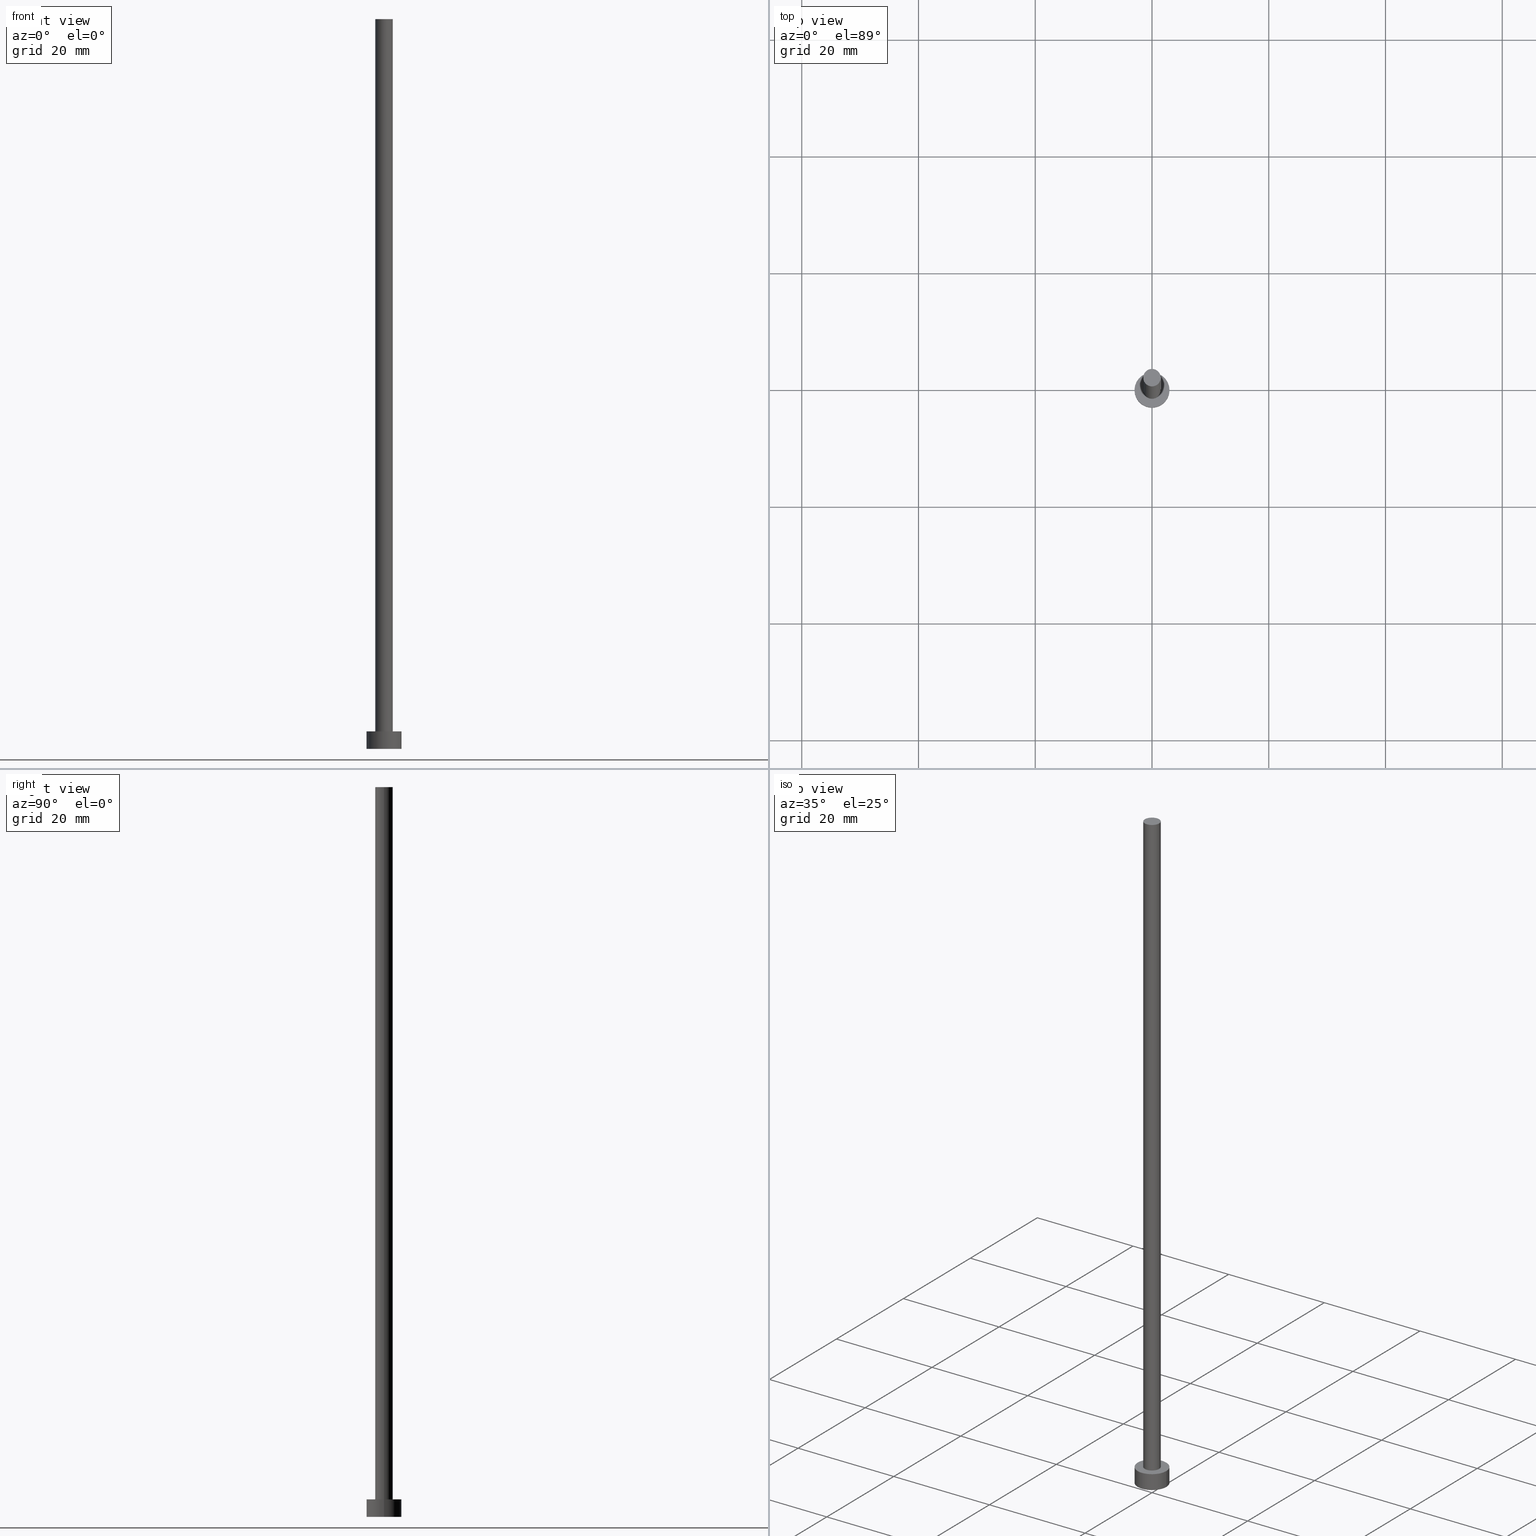
[diagram: canonical four-view strip — front | top / right | iso, engineering-drawing reading convention]
A machine part, canonical four-view strip (front | top / right | iso — engineering-drawing reading convention). The complete STEP part file that produces these views, byte-faithful:
ISO-10303-21;
HEADER;
FILE_DESCRIPTION (( 'STEP AP203' ),
    '1' );
FILE_NAME ('4099.STEP',
    '2023-02-12T12:13:59',
    ( '' ),
    ( '' ),
    'SwSTEP 2.0',
    'SolidWorks 2019',
    '' );
FILE_SCHEMA (( 'CONFIG_CONTROL_DESIGN' ));
ENDSEC;

DATA;
#1 = LINE ( 'NONE', #57, #152 ) ;
#2 = CARTESIAN_POINT ( 'NONE',  ( 0.000000000000000000, 0.000000000000000000, 3.000000000000000000 ) ) ;
#3 = DIRECTION ( 'NONE',  ( 0.000000000000000000, 0.000000000000000000, 1.000000000000000000 ) ) ;
#4 = CC_DESIGN_PERSON_AND_ORGANIZATION_ASSIGNMENT ( #91, #30, ( #9 ) ) ;
#5 = EDGE_LOOP ( 'NONE', ( #8, #36 ) ) ;
#6 = EDGE_CURVE ( 'NONE', #211, #42, #1, .T. ) ;
#7 = AXIS2_PLACEMENT_3D ( 'NONE', #2, #198, #220 ) ;
#8 = ORIENTED_EDGE ( 'NONE', *, *, #202, .T. ) ;
#9 = PRODUCT_DEFINITION_FORMATION_WITH_SPECIFIED_SOURCE ( 'LIBOVOLN�', '', #125, .NOT_KNOWN. ) ;
#10 = DATE_TIME_ROLE ( 'creation_date' ) ;
#11 = PERSON_AND_ORGANIZATION_ROLE ( 'design_supplier' ) ;
#12 = ADVANCED_BREP_SHAPE_REPRESENTATION ( '4099', ( #163, #234 ), #186 ) ;
#13 = MECHANICAL_CONTEXT ( 'NONE', #241, 'mechanical' ) ;
#14 = PRODUCT_RELATED_PRODUCT_CATEGORY ( 'detail', '', ( #125 ) ) ;
#15 = CARTESIAN_POINT ( 'NONE',  ( -3.000000000000000444, 0.000000000000000000, 3.000000000000000000 ) ) ;
#16 = CARTESIAN_POINT ( 'NONE',  ( 1.500000000000000222, 1.836970198721029934E-16, 125.0000000000000000 ) ) ;
#17 = CIRCLE ( 'NONE', #45, 3.000000000000000444 ) ;
#18 = CIRCLE ( 'NONE', #104, 3.000000000000000444 ) ;
#19 = DIRECTION ( 'NONE',  ( -1.000000000000000000, 0.000000000000000000, 0.000000000000000000 ) ) ;
#20 = PLANE ( 'NONE',  #24 ) ;
#21 = CARTESIAN_POINT ( 'NONE',  ( -1.500000000000000222, 0.000000000000000000, 3.000000000000000000 ) ) ;
#22 = DIRECTION ( 'NONE',  ( 0.000000000000000000, 0.000000000000000000, 1.000000000000000000 ) ) ;
#23 = CARTESIAN_POINT ( 'NONE',  ( 0.000000000000000000, 0.000000000000000000, 125.0000000000000000 ) ) ;
#24 = AXIS2_PLACEMENT_3D ( 'NONE', #98, #178, #37 ) ;
#25 = CC_DESIGN_PERSON_AND_ORGANIZATION_ASSIGNMENT ( #203, #226, ( #86 ) ) ;
#26 = LOCAL_TIME ( 13, 13, 59.00000000000000000, #228 ) ;
#27 = ORIENTED_EDGE ( 'NONE', *, *, #127, .F. ) ;
#28 = ADVANCED_FACE ( 'NONE', ( #196 ), #235, .T. ) ;
#29 = COORDINATED_UNIVERSAL_TIME_OFFSET ( 1, 0, .AHEAD. ) ;
#30 = PERSON_AND_ORGANIZATION_ROLE ( 'creator' ) ;
#31 = APPROVAL_ROLE ( '' ) ;
#32 = VERTEX_POINT ( 'NONE', #189 ) ;
#33 = EDGE_CURVE ( 'NONE', #179, #211, #102, .T. ) ;
#34 = CARTESIAN_POINT ( 'NONE',  ( 3.000000000000000444, 3.673940397442060361E-16, 0.000000000000000000 ) ) ;
#35 = CYLINDRICAL_SURFACE ( 'NONE', #153, 3.000000000000000444 ) ;
#36 = ORIENTED_EDGE ( 'NONE', *, *, #33, .T. ) ;
#37 = DIRECTION ( 'NONE',  ( 1.000000000000000000, 0.000000000000000000, -0.000000000000000000 ) ) ;
#38 = LINE ( 'NONE', #15, #240 ) ;
#39 = CARTESIAN_POINT ( 'NONE',  ( 0.000000000000000000, 0.000000000000000000, 125.0000000000000000 ) ) ;
#40 = DIRECTION ( 'NONE',  ( 1.000000000000000000, 0.000000000000000000, -0.000000000000000000 ) ) ;
#41 = ORIENTED_EDGE ( 'NONE', *, *, #51, .T. ) ;
#42 = VERTEX_POINT ( 'NONE', #21 ) ;
#43 = DATE_AND_TIME ( #132, #147 ) ;
#44 = APPROVAL ( #130, 'NEUR�EN�' ) ;
#45 = AXIS2_PLACEMENT_3D ( 'NONE', #174, #251, #73 ) ;
#46 = PERSON_AND_ORGANIZATION ( #131, #59 ) ;
#47 = CALENDAR_DATE ( 2023, 12, 2 ) ;
#48 = APPROVAL_STATUS ( 'not_yet_approved' ) ;
#49 = PERSON_AND_ORGANIZATION ( #131, #59 ) ;
#50 = ORIENTED_EDGE ( 'NONE', *, *, #143, .T. ) ;
#51 = EDGE_CURVE ( 'NONE', #179, #32, #116, .T. ) ;
#52 = CARTESIAN_POINT ( 'NONE',  ( 0.000000000000000000, 0.000000000000000000, 3.000000000000000000 ) ) ;
#53 = CARTESIAN_POINT ( 'NONE',  ( 3.000000000000000444, 3.673940397442060361E-16, 3.000000000000000000 ) ) ;
#54 = DIRECTION ( 'NONE',  ( -1.000000000000000000, 0.000000000000000000, 0.000000000000000000 ) ) ;
#55 = VERTEX_POINT ( 'NONE', #34 ) ;
#56 =( NAMED_UNIT ( * ) SI_UNIT ( $, .STERADIAN. ) SOLID_ANGLE_UNIT ( ) );
#57 = CARTESIAN_POINT ( 'NONE',  ( -1.500000000000000222, 0.000000000000000000, 125.0000000000000000 ) ) ;
#58 = DIRECTION ( 'NONE',  ( 0.000000000000000000, 0.000000000000000000, 1.000000000000000000 ) ) ;
#59 = ORGANIZATION ( 'NEUR�EN�', 'NEUR�EN�', '' ) ;
#60 = APPROVAL ( #67, 'NEUR�EN�' ) ;
#61 = EDGE_CURVE ( 'NONE', #118, #55, #135, .T. ) ;
#62 = VECTOR ( 'NONE', #138, 1000.000000000000000 ) ;
#63 = LOCAL_TIME ( 13, 13, 59.00000000000000000, #29 ) ;
#64 = EDGE_LOOP ( 'NONE', ( #123, #41, #166, #65 ) ) ;
#65 = ORIENTED_EDGE ( 'NONE', *, *, #6, .F. ) ;
#66 = APPROVAL_DATE_TIME ( #43, #44 ) ;
#67 = APPROVAL_STATUS ( 'not_yet_approved' ) ;
#68 = PERSON_AND_ORGANIZATION ( #131, #59 ) ;
#69 = ADVANCED_FACE ( 'NONE', ( #247 ), #71, .T. ) ;
#70 = APPROVAL_DATE_TIME ( #246, #94 ) ;
#71 = CYLINDRICAL_SURFACE ( 'NONE', #129, 3.000000000000000444 ) ;
#72 = CARTESIAN_POINT ( 'NONE',  ( 0.000000000000000000, 0.000000000000000000, 125.0000000000000000 ) ) ;
#73 = DIRECTION ( 'NONE',  ( 1.000000000000000000, 0.000000000000000000, 0.000000000000000000 ) ) ;
#74 = DIRECTION ( 'NONE',  ( 1.000000000000000000, 0.000000000000000000, 0.000000000000000000 ) ) ;
#75 = CC_DESIGN_APPROVAL ( #94, ( #86 ) ) ;
#76 = DIRECTION ( 'NONE',  ( 1.000000000000000000, 0.000000000000000000, 0.000000000000000000 ) ) ;
#77 = CARTESIAN_POINT ( 'NONE',  ( 0.000000000000000000, 0.000000000000000000, 3.000000000000000000 ) ) ;
#78 = EDGE_CURVE ( 'NONE', #182, #224, #38, .T. ) ;
#79 = CARTESIAN_POINT ( 'NONE',  ( 3.000000000000000444, 3.673940397442060361E-16, 3.000000000000000000 ) ) ;
#80 = DIRECTION ( 'NONE',  ( 1.000000000000000000, 0.000000000000000000, -0.000000000000000000 ) ) ;
#81 = DIRECTION ( 'NONE',  ( 1.000000000000000000, 0.000000000000000000, 0.000000000000000000 ) ) ;
#82 = EDGE_CURVE ( 'NONE', #224, #55, #17, .T. ) ;
#83 = EDGE_CURVE ( 'NONE', #55, #224, #192, .T. ) ;
#84 = ORIENTED_EDGE ( 'NONE', *, *, #167, .F. ) ;
#85 = PRODUCT_DEFINITION_SHAPE ( 'NONE', 'NONE',  #86 ) ;
#86 = PRODUCT_DEFINITION ( 'NEZN�M�', '', #9, #253 ) ;
#87 = CIRCLE ( 'NONE', #193, 3.000000000000000444 ) ;
#88 = APPROVAL_ROLE ( '' ) ;
#89 = ORIENTED_EDGE ( 'NONE', *, *, #127, .T. ) ;
#90 = DATE_AND_TIME ( #184, #109 ) ;
#91 = PERSON_AND_ORGANIZATION ( #131, #59 ) ;
#92 = APPROVAL_ROLE ( '' ) ;
#93 = DIRECTION ( 'NONE',  ( -0.000000000000000000, -0.000000000000000000, -1.000000000000000000 ) ) ;
#94 = APPROVAL ( #48, 'NEUR�EN�' ) ;
#95 = DIRECTION ( 'NONE',  ( -0.000000000000000000, -0.000000000000000000, -1.000000000000000000 ) ) ;
#96 = CARTESIAN_POINT ( 'NONE',  ( 0.000000000000000000, 0.000000000000000000, 0.000000000000000000 ) ) ;
#97 = CARTESIAN_POINT ( 'NONE',  ( 0.000000000000000000, 0.000000000000000000, 0.000000000000000000 ) ) ;
#98 = CARTESIAN_POINT ( 'NONE',  ( 0.000000000000000000, 0.000000000000000000, 125.0000000000000000 ) ) ;
#99 = APPROVAL_PERSON_ORGANIZATION ( #49, #60, #31 ) ;
#100 = PLANE ( 'NONE',  #210 ) ;
#101 = DIRECTION ( 'NONE',  ( 0.000000000000000000, 0.000000000000000000, 1.000000000000000000 ) ) ;
#102 = CIRCLE ( 'NONE', #162, 1.500000000000000222 ) ;
#103 = DIRECTION ( 'NONE',  ( -1.000000000000000000, 0.000000000000000000, 0.000000000000000000 ) ) ;
#104 = AXIS2_PLACEMENT_3D ( 'NONE', #159, #3, #119 ) ;
#105 = ORIENTED_EDGE ( 'NONE', *, *, #78, .T. ) ;
#106 = ADVANCED_FACE ( 'NONE', ( #157, #140 ), #100, .T. ) ;
#107 = PERSON_AND_ORGANIZATION ( #131, #59 ) ;
#108 = COORDINATED_UNIVERSAL_TIME_OFFSET ( 1, 0, .AHEAD. ) ;
#109 = LOCAL_TIME ( 13, 13, 59.00000000000000000, #108 ) ;
#110 = APPROVAL_DATE_TIME ( #133, #60 ) ;
#111 = CARTESIAN_POINT ( 'NONE',  ( 0.000000000000000000, 0.000000000000000000, 125.0000000000000000 ) ) ;
#112 = CC_DESIGN_PERSON_AND_ORGANIZATION_ASSIGNMENT ( #245, #207, ( #222 ) ) ;
#113 = APPLICATION_CONTEXT ( 'configuration controlled 3d designs of mechanical parts and assemblies' ) ;
#114 = DIRECTION ( 'NONE',  ( -0.000000000000000000, -0.000000000000000000, -1.000000000000000000 ) ) ;
#115 = CARTESIAN_POINT ( 'NONE',  ( -3.000000000000000444, 0.000000000000000000, 3.000000000000000000 ) ) ;
#116 = LINE ( 'NONE', #194, #249 ) ;
#117 = FACE_OUTER_BOUND ( 'NONE', #124, .T. ) ;
#118 = VERTEX_POINT ( 'NONE', #53 ) ;
#119 = DIRECTION ( 'NONE',  ( 1.000000000000000000, 0.000000000000000000, 0.000000000000000000 ) ) ;
#120 = CARTESIAN_POINT ( 'NONE',  ( 0.000000000000000000, 0.000000000000000000, 3.000000000000000000 ) ) ;
#121 = CC_DESIGN_DATE_AND_TIME_ASSIGNMENT ( #90, #208, ( #222 ) ) ;
#122 = APPROVAL_PERSON_ORGANIZATION ( #68, #94, #88 ) ;
#123 = ORIENTED_EDGE ( 'NONE', *, *, #33, .F. ) ;
#124 = EDGE_LOOP ( 'NONE', ( #201, #204, #105, #154 ) ) ;
#125 = PRODUCT ( '4099', '4099', '', ( #13 ) ) ;
#126 = ORIENTED_EDGE ( 'NONE', *, *, #82, .F. ) ;
#127 = EDGE_CURVE ( 'NONE', #118, #182, #18, .T. ) ;
#128 = CALENDAR_DATE ( 2023, 12, 2 ) ;
#129 = AXIS2_PLACEMENT_3D ( 'NONE', #52, #114, #19 ) ;
#130 = APPROVAL_STATUS ( 'not_yet_approved' ) ;
#131 = PERSON ( 'NEUR�EN�', 'NEUR�EN�', 'NEUR�EN�', ('NEUR�EN�'), ('NEUR�EN�'), ('NEUR�EN�') ) ;
#132 = CALENDAR_DATE ( 2023, 12, 2 ) ;
#133 = DATE_AND_TIME ( #47, #26 ) ;
#134 = ADVANCED_FACE ( 'NONE', ( #216 ), #20, .T. ) ;
#135 = LINE ( 'NONE', #79, #62 ) ;
#136 = ORIENTED_EDGE ( 'NONE', *, *, #78, .F. ) ;
#137 = CARTESIAN_POINT ( 'NONE',  ( 0.000000000000000000, 0.000000000000000000, 3.000000000000000000 ) ) ;
#138 = DIRECTION ( 'NONE',  ( -0.000000000000000000, -0.000000000000000000, -1.000000000000000000 ) ) ;
#139 = CARTESIAN_POINT ( 'NONE',  ( -1.500000000000000222, 0.000000000000000000, 125.0000000000000000 ) ) ;
#140 = FACE_OUTER_BOUND ( 'NONE', #215, .T. ) ;
#141 = DIRECTION ( 'NONE',  ( -0.000000000000000000, -0.000000000000000000, -1.000000000000000000 ) ) ;
#142 = DIRECTION ( 'NONE',  ( 1.000000000000000000, 0.000000000000000000, 0.000000000000000000 ) ) ;
#143 = EDGE_CURVE ( 'NONE', #182, #118, #87, .T. ) ;
#144 = AXIS2_PLACEMENT_3D ( 'NONE', #23, #252, #103 ) ;
#145 = CC_DESIGN_SECURITY_CLASSIFICATION ( #222, ( #9 ) ) ;
#146 = ADVANCED_FACE ( 'NONE', ( #117 ), #35, .T. ) ;
#147 = LOCAL_TIME ( 13, 13, 59.00000000000000000, #151 ) ;
#148 = EDGE_LOOP ( 'NONE', ( #126, #218 ) ) ;
#149 = DIRECTION ( 'NONE',  ( 1.000000000000000000, 0.000000000000000000, 0.000000000000000000 ) ) ;
#150 = AXIS2_PLACEMENT_3D ( 'NONE', #96, #58, #40 ) ;
#151 = COORDINATED_UNIVERSAL_TIME_OFFSET ( 1, 0, .AHEAD. ) ;
#152 = VECTOR ( 'NONE', #141, 1000.000000000000000 ) ;
#153 = AXIS2_PLACEMENT_3D ( 'NONE', #255, #213, #180 ) ;
#154 = ORIENTED_EDGE ( 'NONE', *, *, #82, .T. ) ;
#155 =( LENGTH_UNIT ( ) NAMED_UNIT ( * ) SI_UNIT ( .MILLI., .METRE. ) );
#156 = EDGE_LOOP ( 'NONE', ( #27, #190, #212, #136 ) ) ;
#157 = FACE_BOUND ( 'NONE', #173, .T. ) ;
#158 = ORIENTED_EDGE ( 'NONE', *, *, #209, .F. ) ;
#159 = CARTESIAN_POINT ( 'NONE',  ( 0.000000000000000000, 0.000000000000000000, 3.000000000000000000 ) ) ;
#160 = CARTESIAN_POINT ( 'NONE',  ( -3.000000000000000444, 0.000000000000000000, 0.000000000000000000 ) ) ;
#161 = CC_DESIGN_PERSON_AND_ORGANIZATION_ASSIGNMENT ( #107, #230, ( #125 ) ) ;
#162 = AXIS2_PLACEMENT_3D ( 'NONE', #39, #254, #76 ) ;
#163 = MANIFOLD_SOLID_BREP ( 'P�idat vysunut�m3', #200 ) ;
#164 = CIRCLE ( 'NONE', #183, 1.500000000000000222 ) ;
#165 = EDGE_LOOP ( 'NONE', ( #232, #238, #225, #223 ) ) ;
#166 = ORIENTED_EDGE ( 'NONE', *, *, #209, .T. ) ;
#167 = EDGE_CURVE ( 'NONE', #42, #32, #250, .T. ) ;
#168 = CC_DESIGN_PERSON_AND_ORGANIZATION_ASSIGNMENT ( #231, #11, ( #9 ) ) ;
#169 = CALENDAR_DATE ( 2023, 12, 2 ) ;
#170 = COORDINATED_UNIVERSAL_TIME_OFFSET ( 1, 0, .AHEAD. ) ;
#171 = SECURITY_CLASSIFICATION_LEVEL ( 'unclassified' ) ;
#172 = CARTESIAN_POINT ( 'NONE',  ( 0.000000000000000000, 0.000000000000000000, 0.000000000000000000 ) ) ;
#173 = EDGE_LOOP ( 'NONE', ( #84, #158 ) ) ;
#174 = CARTESIAN_POINT ( 'NONE',  ( 0.000000000000000000, 0.000000000000000000, 0.000000000000000000 ) ) ;
#175 = CYLINDRICAL_SURFACE ( 'NONE', #144, 1.500000000000000222 ) ;
#176 = APPROVAL_PERSON_ORGANIZATION ( #46, #44, #92 ) ;
#177 = DIRECTION ( 'NONE',  ( 0.000000000000000000, 0.000000000000000000, 1.000000000000000000 ) ) ;
#178 = DIRECTION ( 'NONE',  ( 0.000000000000000000, 0.000000000000000000, 1.000000000000000000 ) ) ;
#179 = VERTEX_POINT ( 'NONE', #16 ) ;
#180 = DIRECTION ( 'NONE',  ( -1.000000000000000000, 0.000000000000000000, 0.000000000000000000 ) ) ;
#181 = DIRECTION ( 'NONE',  ( 0.000000000000000000, 0.000000000000000000, 1.000000000000000000 ) ) ;
#182 = VERTEX_POINT ( 'NONE', #115 ) ;
#183 = AXIS2_PLACEMENT_3D ( 'NONE', #77, #22, #81 ) ;
#184 = CALENDAR_DATE ( 2023, 12, 2 ) ;
#185 = APPLICATION_PROTOCOL_DEFINITION ( 'international standard', 'config_control_design', 1994, #241 ) ;
#186 =( GEOMETRIC_REPRESENTATION_CONTEXT ( 3 ) GLOBAL_UNCERTAINTY_ASSIGNED_CONTEXT ( ( #233 ) ) GLOBAL_UNIT_ASSIGNED_CONTEXT ( ( #155, #236, #56 ) ) REPRESENTATION_CONTEXT ( 'NONE', 'WORKASPACE' ) );
#187 = SHAPE_DEFINITION_REPRESENTATION ( #85, #12 ) ;
#188 = ADVANCED_FACE ( 'NONE', ( #195 ), #248, .F. ) ;
#189 = CARTESIAN_POINT ( 'NONE',  ( 1.500000000000000222, 1.836970198721029934E-16, 3.000000000000000000 ) ) ;
#190 = ORIENTED_EDGE ( 'NONE', *, *, #61, .T. ) ;
#191 = FACE_OUTER_BOUND ( 'NONE', #165, .T. ) ;
#192 = CIRCLE ( 'NONE', #227, 3.000000000000000444 ) ;
#193 = AXIS2_PLACEMENT_3D ( 'NONE', #137, #239, #142 ) ;
#194 = CARTESIAN_POINT ( 'NONE',  ( 1.500000000000000222, 1.836970198721029934E-16, 125.0000000000000000 ) ) ;
#195 = FACE_OUTER_BOUND ( 'NONE', #148, .T. ) ;
#196 = FACE_OUTER_BOUND ( 'NONE', #64, .T. ) ;
#197 = ADVANCED_FACE ( 'NONE', ( #191 ), #175, .T. ) ;
#198 = DIRECTION ( 'NONE',  ( 0.000000000000000000, 0.000000000000000000, 1.000000000000000000 ) ) ;
#199 = LOCAL_TIME ( 13, 13, 59.00000000000000000, #170 ) ;
#200 = CLOSED_SHELL ( 'NONE', ( #28, #69, #146, #106, #188, #197, #134 ) ) ;
#201 = ORIENTED_EDGE ( 'NONE', *, *, #61, .F. ) ;
#202 = EDGE_CURVE ( 'NONE', #211, #179, #217, .T. ) ;
#203 = PERSON_AND_ORGANIZATION ( #131, #59 ) ;
#204 = ORIENTED_EDGE ( 'NONE', *, *, #143, .F. ) ;
#205 = DIRECTION ( 'NONE',  ( 0.000000000000000000, 0.000000000000000000, 1.000000000000000000 ) ) ;
#206 = CC_DESIGN_APPROVAL ( #44, ( #9 ) ) ;
#207 = PERSON_AND_ORGANIZATION_ROLE ( 'classification_officer' ) ;
#208 = DATE_TIME_ROLE ( 'classification_date' ) ;
#209 = EDGE_CURVE ( 'NONE', #32, #42, #164, .T. ) ;
#210 = AXIS2_PLACEMENT_3D ( 'NONE', #120, #101, #80 ) ;
#211 = VERTEX_POINT ( 'NONE', #139 ) ;
#212 = ORIENTED_EDGE ( 'NONE', *, *, #83, .T. ) ;
#213 = DIRECTION ( 'NONE',  ( -0.000000000000000000, -0.000000000000000000, -1.000000000000000000 ) ) ;
#214 = CC_DESIGN_DATE_AND_TIME_ASSIGNMENT ( #242, #10, ( #86 ) ) ;
#215 = EDGE_LOOP ( 'NONE', ( #50, #89 ) ) ;
#216 = FACE_OUTER_BOUND ( 'NONE', #5, .T. ) ;
#217 = CIRCLE ( 'NONE', #244, 1.500000000000000222 ) ;
#218 = ORIENTED_EDGE ( 'NONE', *, *, #83, .F. ) ;
#219 = DIRECTION ( 'NONE',  ( -0.000000000000000000, -0.000000000000000000, -1.000000000000000000 ) ) ;
#220 = DIRECTION ( 'NONE',  ( 1.000000000000000000, 0.000000000000000000, 0.000000000000000000 ) ) ;
#221 = AXIS2_PLACEMENT_3D ( 'NONE', #111, #219, #54 ) ;
#222 = SECURITY_CLASSIFICATION ( '', '', #171 ) ;
#223 = ORIENTED_EDGE ( 'NONE', *, *, #167, .T. ) ;
#224 = VERTEX_POINT ( 'NONE', #160 ) ;
#225 = ORIENTED_EDGE ( 'NONE', *, *, #6, .T. ) ;
#226 = PERSON_AND_ORGANIZATION_ROLE ( 'creator' ) ;
#227 = AXIS2_PLACEMENT_3D ( 'NONE', #97, #177, #237 ) ;
#228 = COORDINATED_UNIVERSAL_TIME_OFFSET ( 1, 0, .AHEAD. ) ;
#229 = CC_DESIGN_APPROVAL ( #60, ( #222 ) ) ;
#230 = PERSON_AND_ORGANIZATION_ROLE ( 'design_owner' ) ;
#231 = PERSON_AND_ORGANIZATION ( #131, #59 ) ;
#232 = ORIENTED_EDGE ( 'NONE', *, *, #51, .F. ) ;
#233 = UNCERTAINTY_MEASURE_WITH_UNIT (LENGTH_MEASURE( 1.000000000000000082E-05 ), #155, 'distance_accuracy_value', 'NONE');
#234 = AXIS2_PLACEMENT_3D ( 'NONE', #172, #205, #149 ) ;
#235 = CYLINDRICAL_SURFACE ( 'NONE', #221, 1.500000000000000222 ) ;
#236 =( NAMED_UNIT ( * ) PLANE_ANGLE_UNIT ( ) SI_UNIT ( $, .RADIAN. ) );
#237 = DIRECTION ( 'NONE',  ( 1.000000000000000000, 0.000000000000000000, 0.000000000000000000 ) ) ;
#238 = ORIENTED_EDGE ( 'NONE', *, *, #202, .F. ) ;
#239 = DIRECTION ( 'NONE',  ( 0.000000000000000000, 0.000000000000000000, 1.000000000000000000 ) ) ;
#240 = VECTOR ( 'NONE', #95, 1000.000000000000000 ) ;
#241 = APPLICATION_CONTEXT ( 'configuration controlled 3d designs of mechanical parts and assemblies' ) ;
#242 = DATE_AND_TIME ( #169, #63 ) ;
#243 = APPLICATION_PROTOCOL_DEFINITION ( 'international standard', 'config_control_design', 1994, #113 ) ;
#244 = AXIS2_PLACEMENT_3D ( 'NONE', #72, #181, #74 ) ;
#245 = PERSON_AND_ORGANIZATION ( #131, #59 ) ;
#246 = DATE_AND_TIME ( #128, #199 ) ;
#247 = FACE_OUTER_BOUND ( 'NONE', #156, .T. ) ;
#248 = PLANE ( 'NONE',  #150 ) ;
#249 = VECTOR ( 'NONE', #93, 1000.000000000000000 ) ;
#250 = CIRCLE ( 'NONE', #7, 1.500000000000000222 ) ;
#251 = DIRECTION ( 'NONE',  ( 0.000000000000000000, 0.000000000000000000, 1.000000000000000000 ) ) ;
#252 = DIRECTION ( 'NONE',  ( -0.000000000000000000, -0.000000000000000000, -1.000000000000000000 ) ) ;
#253 = DESIGN_CONTEXT ( 'detailed design', #113, 'design' ) ;
#254 = DIRECTION ( 'NONE',  ( 0.000000000000000000, 0.000000000000000000, 1.000000000000000000 ) ) ;
#255 = CARTESIAN_POINT ( 'NONE',  ( 0.000000000000000000, 0.000000000000000000, 3.000000000000000000 ) ) ;
ENDSEC;
END-ISO-10303-21;
